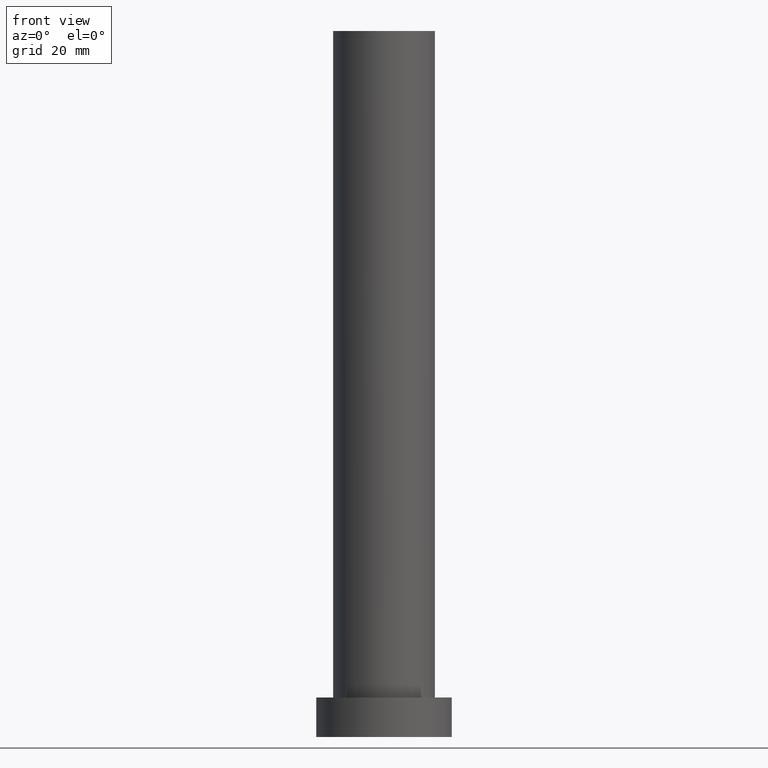
[diagram: clean part render]
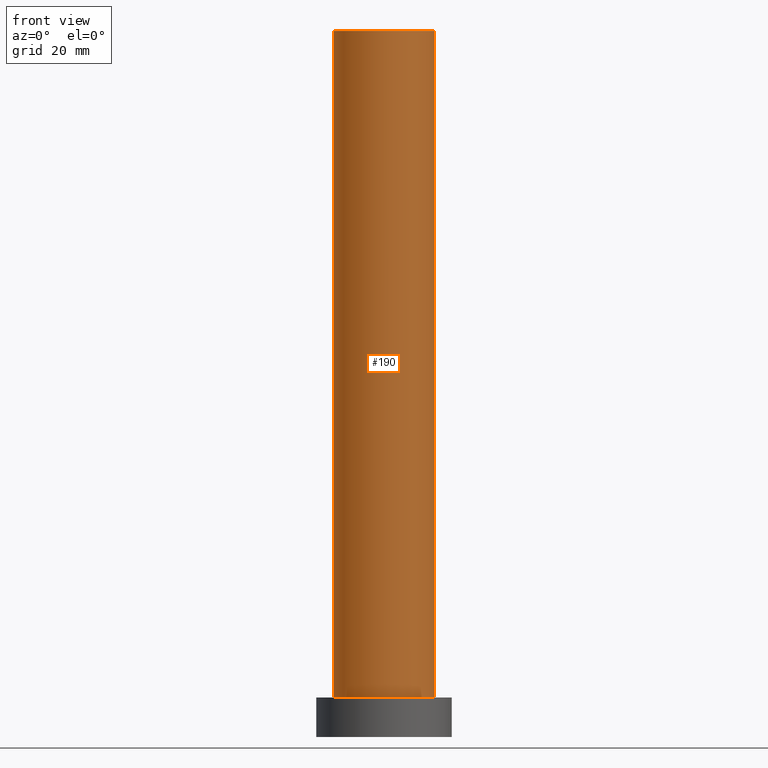
[diagram: same view with one face highlighted and labeled with its STEP entity id]
A machine part, front view. The second image highlights one B-rep face of the part: STEP entity #190.
In plain terms, the highlighted cylindrical surface (partial cylindrical patch) has radius 9 mm, axis along (-0, -0, -1).
Its self-contained STEP definition (entity closure, byte-faithful):
#6 = EDGE_CURVE ( 'NONE', #165, #47, #76, .T. ) ;
#14 = ORIENTED_EDGE ( 'NONE', *, *, #6, .F. ) ;
#25 = EDGE_CURVE ( 'NONE', #47, #237, #92, .T. ) ;
#28 = CARTESIAN_POINT ( 'NONE',  ( -9.000000000000000000, 0.000000000000000000, 125.0000000000000000 ) ) ;
#33 = DIRECTION ( 'NONE',  ( -1.000000000000000000, 0.000000000000000000, 0.000000000000000000 ) ) ;
#44 = AXIS2_PLACEMENT_3D ( 'NONE', #66, #90, #200 ) ;
#47 = VERTEX_POINT ( 'NONE', #215 ) ;
#54 = CARTESIAN_POINT ( 'NONE',  ( 9.000000000000000000, 1.102182119232617714E-15, 125.0000000000000000 ) ) ;
#62 = VECTOR ( 'NONE', #97, 1000.000000000000000 ) ;
#64 = CARTESIAN_POINT ( 'NONE',  ( -9.000000000000000000, 0.000000000000000000, 7.000000000000000000 ) ) ;
#66 = CARTESIAN_POINT ( 'NONE',  ( 0.000000000000000000, 0.000000000000000000, 7.000000000000000000 ) ) ;
#76 = CIRCLE ( 'NONE', #109, 9.000000000000000000 ) ;
#80 = DIRECTION ( 'NONE',  ( 0.000000000000000000, 0.000000000000000000, 1.000000000000000000 ) ) ;
#85 = DIRECTION ( 'NONE',  ( -0.000000000000000000, -0.000000000000000000, -1.000000000000000000 ) ) ;
#90 = DIRECTION ( 'NONE',  ( 0.000000000000000000, 0.000000000000000000, 1.000000000000000000 ) ) ;
#92 = LINE ( 'NONE', #54, #62 ) ;
#97 = DIRECTION ( 'NONE',  ( -0.000000000000000000, -0.000000000000000000, -1.000000000000000000 ) ) ;
#109 = AXIS2_PLACEMENT_3D ( 'NONE', #186, #80, #231 ) ;
#113 = ORIENTED_EDGE ( 'NONE', *, *, #206, .T. ) ;
#115 = ORIENTED_EDGE ( 'NONE', *, *, #25, .F. ) ;
#116 = LINE ( 'NONE', #28, #241 ) ;
#148 = EDGE_CURVE ( 'NONE', #161, #237, #178, .T. ) ;
#154 = AXIS2_PLACEMENT_3D ( 'NONE', #239, #85, #33 ) ;
#161 = VERTEX_POINT ( 'NONE', #64 ) ;
#165 = VERTEX_POINT ( 'NONE', #172 ) ;
#172 = CARTESIAN_POINT ( 'NONE',  ( -9.000000000000000000, 0.000000000000000000, 125.0000000000000000 ) ) ;
#176 = ORIENTED_EDGE ( 'NONE', *, *, #148, .T. ) ;
#178 = CIRCLE ( 'NONE', #44, 9.000000000000000000 ) ;
#184 = CARTESIAN_POINT ( 'NONE',  ( 9.000000000000000000, 1.102182119232617714E-15, 7.000000000000000000 ) ) ;
#185 = EDGE_LOOP ( 'NONE', ( #115, #14, #113, #176 ) ) ;
#186 = CARTESIAN_POINT ( 'NONE',  ( 0.000000000000000000, 0.000000000000000000, 125.0000000000000000 ) ) ;
#190 = ADVANCED_FACE ( 'NONE', ( #196 ), #243, .T. ) ;
#196 = FACE_OUTER_BOUND ( 'NONE', #185, .T. ) ;
#200 = DIRECTION ( 'NONE',  ( 1.000000000000000000, 0.000000000000000000, 0.000000000000000000 ) ) ;
#206 = EDGE_CURVE ( 'NONE', #165, #161, #116, .T. ) ;
#215 = CARTESIAN_POINT ( 'NONE',  ( 9.000000000000000000, 1.102182119232617714E-15, 125.0000000000000000 ) ) ;
#231 = DIRECTION ( 'NONE',  ( 1.000000000000000000, 0.000000000000000000, 0.000000000000000000 ) ) ;
#237 = VERTEX_POINT ( 'NONE', #184 ) ;
#239 = CARTESIAN_POINT ( 'NONE',  ( 0.000000000000000000, 0.000000000000000000, 125.0000000000000000 ) ) ;
#241 = VECTOR ( 'NONE', #245, 1000.000000000000000 ) ;
#243 = CYLINDRICAL_SURFACE ( 'NONE', #154, 9.000000000000000000 ) ;
#245 = DIRECTION ( 'NONE',  ( -0.000000000000000000, -0.000000000000000000, -1.000000000000000000 ) ) ;